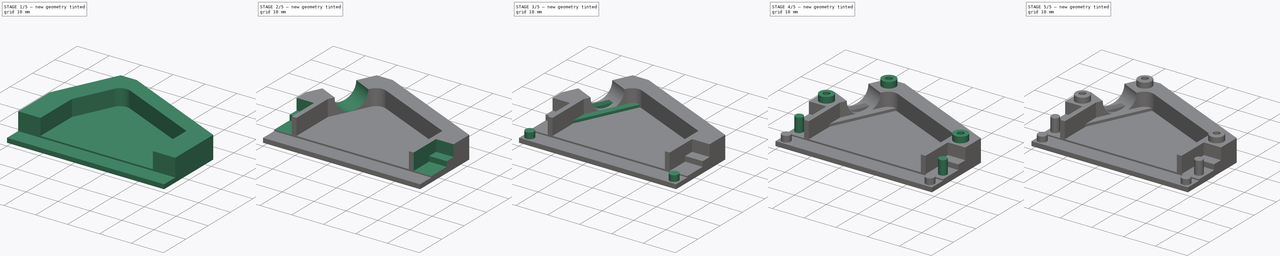
[diagram: build sequence overview — one tinted view per stage of 5, left to right]
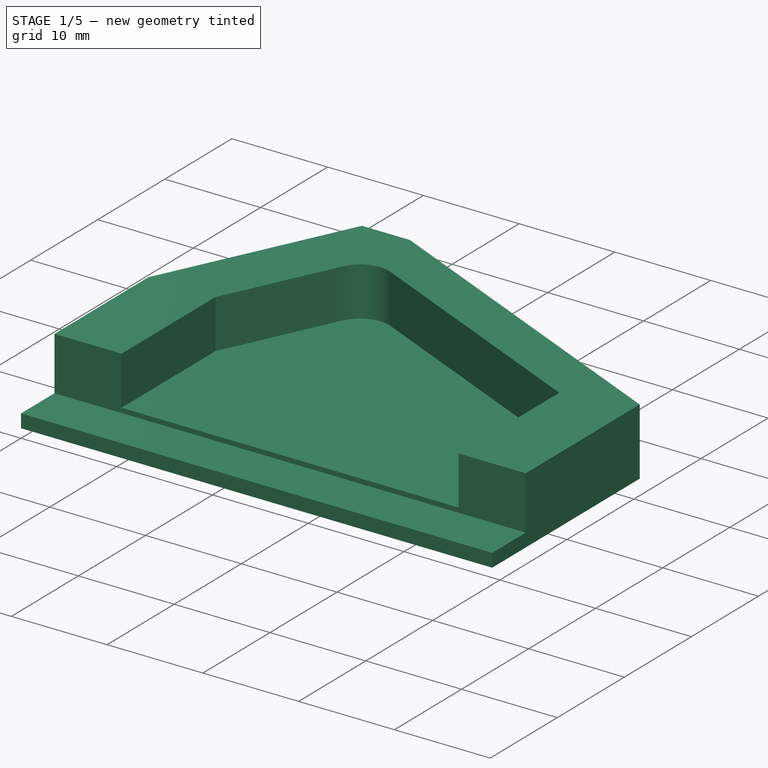
[diagram: stage 1 of 5 — iso view after this stage's code; geometry added in this stage tinted green]
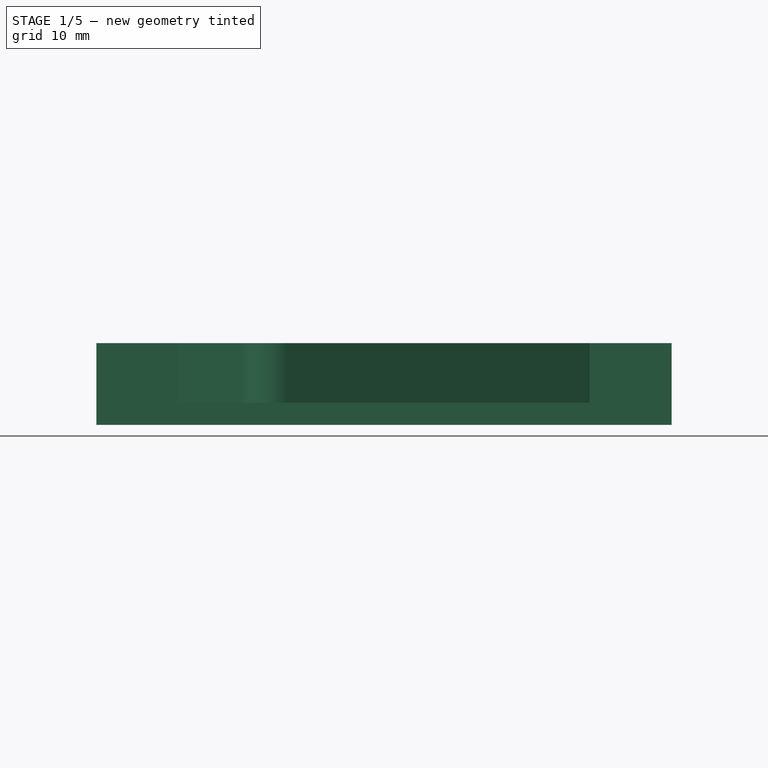
[diagram: stage 1 of 5 — front view after this stage's code; geometry added in this stage tinted green]
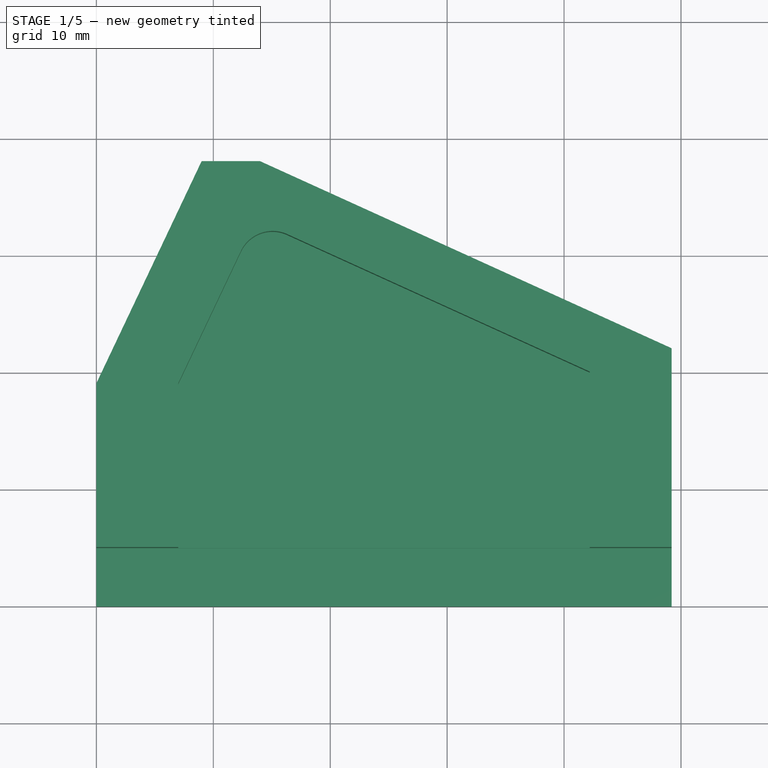
[diagram: stage 1 of 5 — top view after this stage's code; geometry added in this stage tinted green]
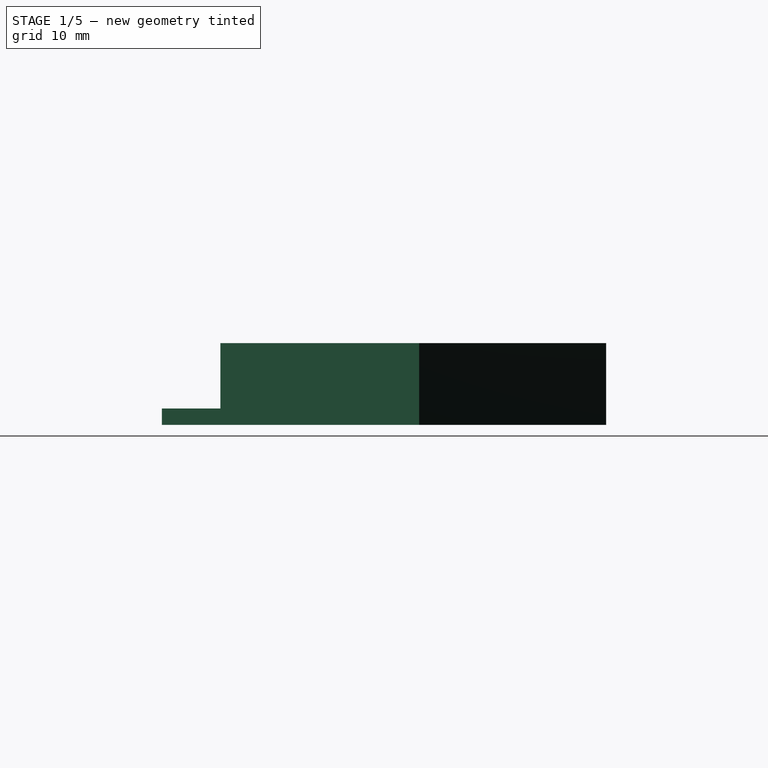
[diagram: stage 1 of 5 — right view after this stage's code; geometry added in this stage tinted green]
FCSTD DOCUMENT  (FreeCAD 0.20R29177 (Git))
Label: efs26_gehaeuse_01
License: All rights reserved
LicenseURL: http://en.wikipedia.org/wiki/All_rights_reserved
objects: Sketcher::SketchObject×15, PartDesign::Pocket×9, PartDesign::Pad×6, PartDesign::Fillet×1, PartDesign::Body×1
note: 48 computed .brp shape members not serialized (recipe doc carries the construction recipe); baked Part::Feature solids carry a one-line shape summary decoded from their .brp

FEATURE [Sketcher::SketchObject] Sketch  label="Aussenschale"
  FullyConstrained = true
  MapMode = 5
  Support = -> [XY_Plane]
  sketch-geometry (6):
    g0: LineSegment StartX=0 StartY=0 StartZ=0 EndX=49.2 EndY=0 EndZ=0
    g1: LineSegment StartX=49.2 StartY=0 StartZ=0 EndX=49.2 EndY=22 EndZ=0
    g2: LineSegment StartX=0 StartY=0 StartZ=0 EndX=0 EndY=19 EndZ=0
    g3: LineSegment StartX=0 StartY=19 StartZ=0 EndX=9 EndY=38 EndZ=0
    g4: LineSegment StartX=9 StartY=38 StartZ=0 EndX=14 EndY=38 EndZ=0
    g5: LineSegment StartX=14 StartY=38 StartZ=0 EndX=49.2 EndY=22 EndZ=0
  constraints (17):
    c: Coincident(g0,g-1)
    c: PointOnObject(g0,g-1)
    c: DistanceX(g0,g0) = 49.2
    c: Coincident(g1,g0)
    c: Vertical(g1)
    c: DistanceY(g1,g1) = 22
    c: Coincident(g2,g0)
    c: DistanceY(g2,g2) = 19
    c: Vertical(g2)
    c: Coincident(g3,g2)
    c: Coincident(g4,g3)
    c: Horizontal(g4)
    c: Coincident(g5,g4)
    c: Coincident(g5,g1)
    c: DistanceY(g0,g3) = 38
    c: DistanceX(g2,g3) = 9
    c: DistanceX(g3,g4) = 5
FEATURE [PartDesign::Pad] Pad
  Direction = (0,0,1)
  Length = 7
  Length2 = 10
  Profile = -> Sketch
  ReferenceAxis = -> Sketch [N_Axis]
  Type = 0
FEATURE [Sketcher::SketchObject] Sketch001
  AttachmentOffset = pos=(0,0,1.4) rot=(0,0,1;0rad)
  FullyConstrained = true
  MapMode = 5
  Placement = pos=(0,0,1.4) rot=(0,0,1;0rad)
  Support = -> [XY_Plane]
  sketch-geometry (4):
    g0: LineSegment StartX=0 StartY=0 StartZ=0 EndX=49.2 EndY=0 EndZ=0
    g1: LineSegment StartX=49.2 StartY=0 StartZ=0 EndX=49.2 EndY=5 EndZ=0
    g2: LineSegment StartX=49.2 StartY=5 StartZ=0 EndX=0 EndY=5 EndZ=0
    g3: LineSegment StartX=0 StartY=5 StartZ=0 EndX=0 EndY=0 EndZ=0
  constraints (11):
    c: Coincident(g0,g1)
    c: Coincident(g1,g2)
    c: Coincident(g2,g3)
    c: Coincident(g3,g0)
    c: Horizontal(g0)
    c: Horizontal(g2)
    c: Vertical(g1)
    c: Vertical(g3)
    c: Coincident(g0,g-1)
    c: DistanceY(g1,g1) = 5
    c: DistanceX(g2,g2) = 49.2
FEATURE [PartDesign::Pocket] Pocket
  BaseFeature = -> Pad
  Direction = (0,0,-1)
  Length = 5.6
  Length2 = 5
  Profile = -> Sketch001
  ReferenceAxis = -> Sketch001 [N_Axis]
  Reversed = true
  Type = 0
FEATURE [Sketcher::SketchObject] Sketch002
  AttachmentOffset = pos=(0,0,1.9) rot=(0,0,1;0rad)
  FullyConstrained = true
  MapMode = 5
  Placement = pos=(0,0,1.9) rot=(0,0,1;0rad)
  Support = -> [XY_Plane]
  sketch-geometry (12):
    g0: LineSegment StartX=7 StartY=5 StartZ=0 EndX=42.2 EndY=5 EndZ=0
    g1: LineSegment StartX=42.2 StartY=5 StartZ=0 EndX=42.2 EndY=20 EndZ=0
    g2: LineSegment StartX=42.2 StartY=20 StartZ=0 EndX=16.3574 EndY=31.7466 EndZ=0
    g3: LineSegment StartX=7 StartY=5 StartZ=0 EndX=7 EndY=19 EndZ=0
    g4: LineSegment StartX=7 StartY=19 StartZ=0 EndX=12.3619 EndY=30.3197 EndZ=0
    g5: LineSegment StartX=9 StartY=38 StartZ=0 EndX=0 EndY=19 EndZ=0
    g6: LineSegment StartX=14 StartY=38 StartZ=0 EndX=49.2 EndY=22 EndZ=0
    g7: ArcOfCircle CenterX=15.0732 CenterY=29.0354 CenterZ=0 NormalX=0 NormalY=0 NormalZ=1 AngleXU=0 Radius=3 StartAngle=1.12842 EndAngle=2.69922
    g8: LineSegment StartX=12.3619 StartY=30.3197 StartZ=0 EndX=15.0732 EndY=29.0354 EndZ=0
    g9: LineSegment StartX=16.3574 StartY=31.7466 StartZ=0 EndX=15.0732 EndY=29.0354 EndZ=0
    g10: LineSegment StartX=49.2 StartY=22 StartZ=0 EndX=49.2 EndY=0 EndZ=0
    g11: LineSegment StartX=9 StartY=38 StartZ=0 EndX=14 EndY=38 EndZ=0
  constraints (36):
    c: Horizontal(g0)
    c: Coincident(g1,g0)
    c: Vertical(g1)
    c: Coincident(g2,g1)
    c: Coincident(g3,g0)
    c: Vertical(g3)
    c: Coincident(g4,g3)
    c: DistanceX(g-1,g0) = 7
    c: DistanceY(g-1,g0) = 5
    c: DistanceY(g-1,g1) = 20
    c: DistanceY(g-1,g3) = 19
    c: PointOnObject(g5,g-2)
    c: DistanceY(g-1,g5) = 19
    c: DistanceX(g-1,g5) = 9
    c: DistanceY(g-1,g5) = 38
    c: Parallel(g5,g4)
    c: DistanceX(g5,g6) = 5
    c: DistanceY(g-1,g6) = 22
    c: DistanceX(g-1,g6) = 49.2
    c: Parallel(g2,g6)
    c: Coincident(g7,g4)
    c: Coincident(g7,g2)
    c: Coincident(g8,g4)
    c: Coincident(g8,g7)
    c: Coincident(g9,g2)
    c: Coincident(g9,g7)
    c: Perpendicular(g8,g9)
    c: Perpendicular(g8,g4)
    c: Radius(g7) = 3
    c: Coincident(g10,g6)
    c: PointOnObject(g10,g-1)
    c: Vertical(g10)
    c: Coincident(g11,g5)
    c: Coincident(g11,g6)
    c: Horizontal(g11)
    c: DistanceX(g0,g10) = 7
FEATURE [PartDesign::Pocket] Pocket001
  BaseFeature = -> Pocket
  Direction = (0,0,-1)
  Length = 6
  Length2 = 5
  Profile = -> Sketch002
  ReferenceAxis = -> Sketch002 [N_Axis]
  Reversed = true
  Type = 0
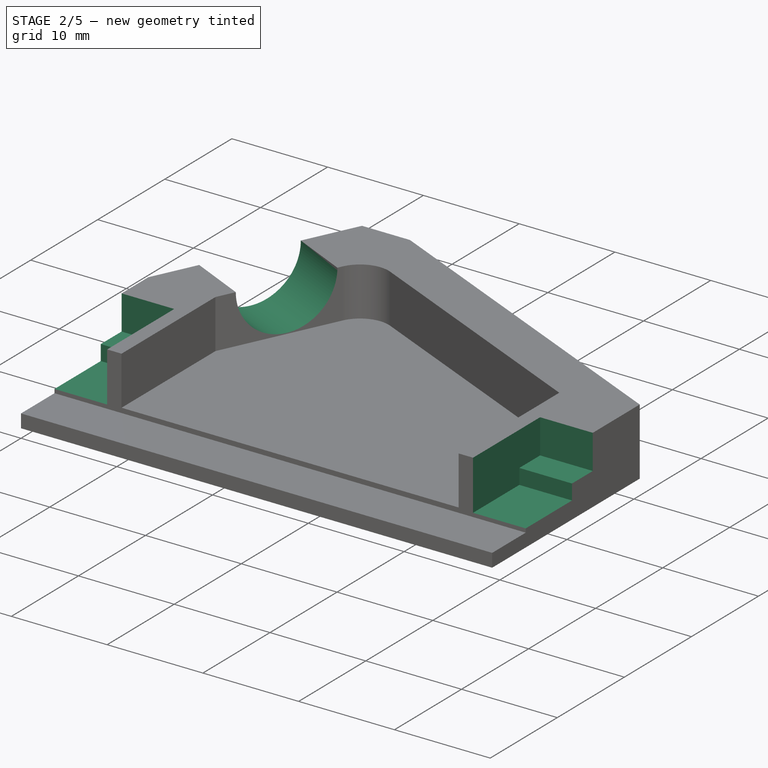
[diagram: stage 2 of 5 — iso view after this stage's code; geometry added in this stage tinted green]
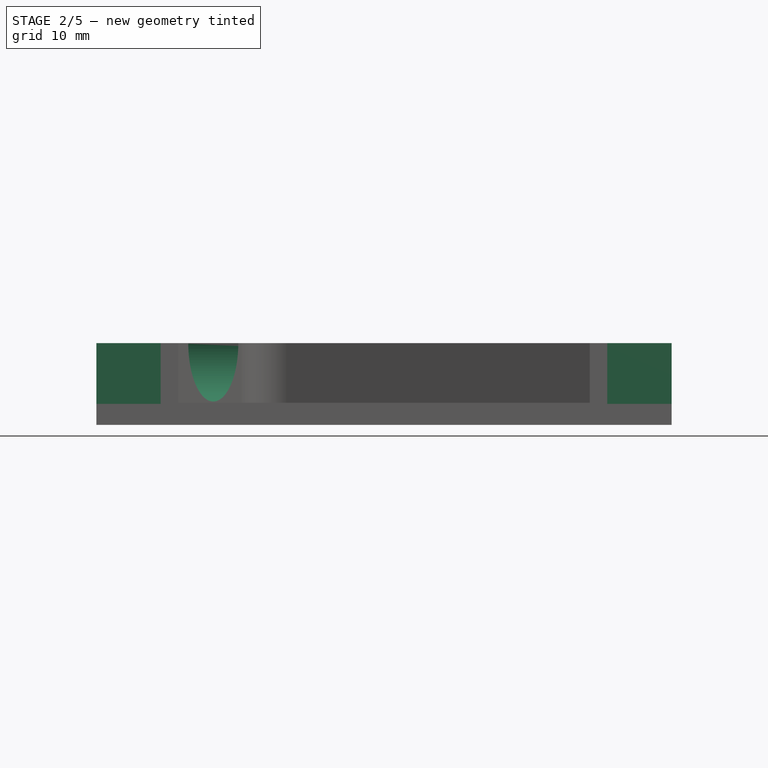
[diagram: stage 2 of 5 — front view after this stage's code; geometry added in this stage tinted green]
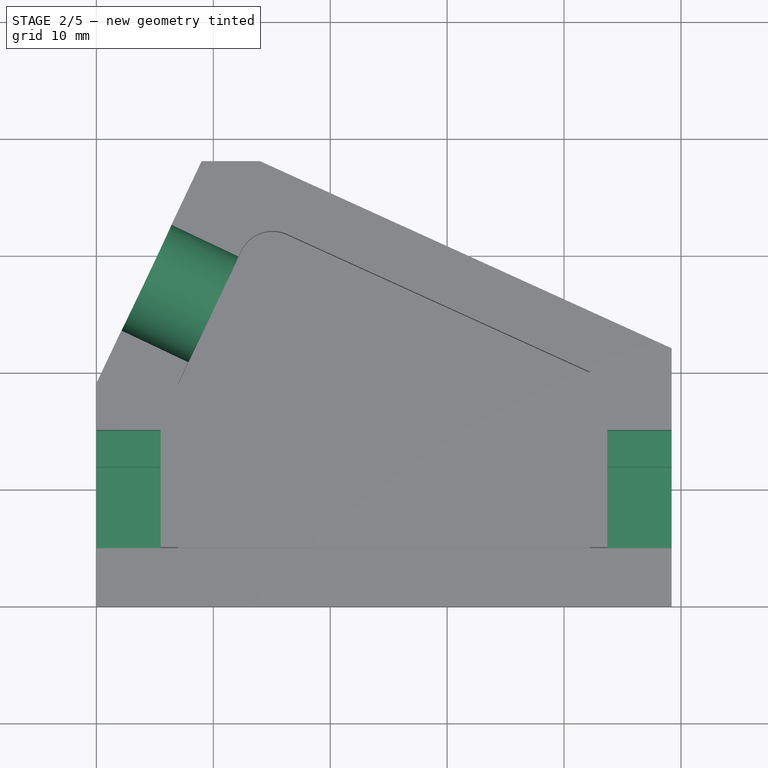
[diagram: stage 2 of 5 — top view after this stage's code; geometry added in this stage tinted green]
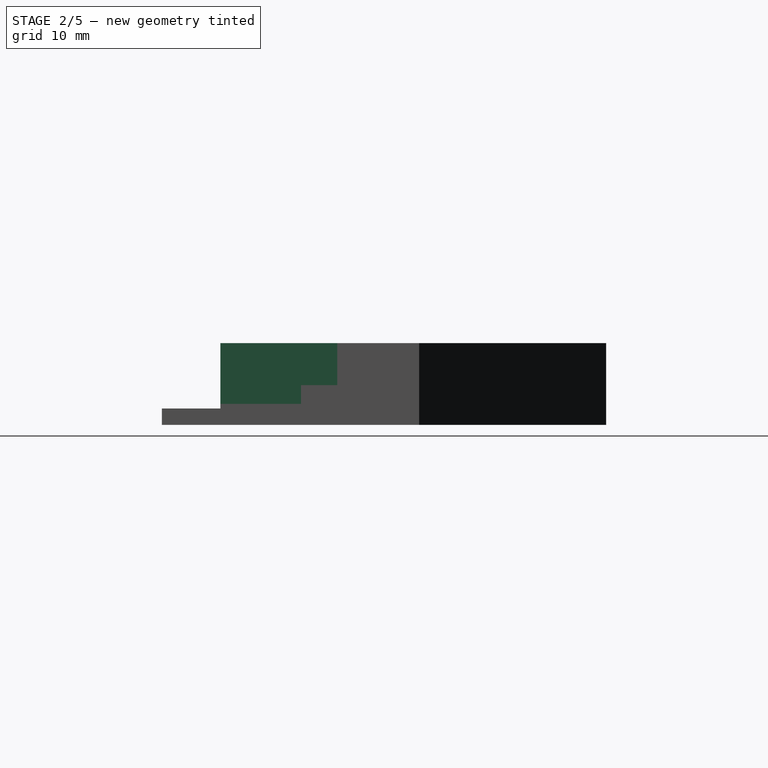
[diagram: stage 2 of 5 — right view after this stage's code; geometry added in this stage tinted green]
FEATURE [Sketcher::SketchObject] Sketch003
  AttachmentOffset = pos=(0,0,1.8) rot=(0,0,1;0rad)
  FullyConstrained = true
  MapMode = 5
  Placement = pos=(0,0,1.8) rot=(0,0,1;0rad)
  Support = -> [XY_Plane]
  sketch-geometry (8):
    g0: LineSegment StartX=0 StartY=11.9 StartZ=0 EndX=5.5 EndY=11.9 EndZ=0
    g1: LineSegment StartX=5.5 StartY=11.9 StartZ=0 EndX=5.5 EndY=5 EndZ=0
    g2: LineSegment StartX=5.5 StartY=5 StartZ=0 EndX=0 EndY=5 EndZ=0
    g3: LineSegment StartX=0 StartY=5 StartZ=0 EndX=0 EndY=11.9 EndZ=0
    g4: LineSegment StartX=49.2 StartY=5 StartZ=0 EndX=43.7 EndY=5 EndZ=0
    g5: LineSegment StartX=43.7 StartY=5 StartZ=0 EndX=43.7 EndY=11.9 EndZ=0
    g6: LineSegment StartX=43.7 StartY=11.9 StartZ=0 EndX=49.2 EndY=11.9 EndZ=0
    g7: LineSegment StartX=49.2 StartY=11.9 StartZ=0 EndX=49.2 EndY=5 EndZ=0
  constraints (24):
    c: Coincident(g0,g1)
    c: Coincident(g1,g2)
    c: Coincident(g2,g3)
    c: Coincident(g3,g0)
    c: Horizontal(g0)
    c: Horizontal(g2)
    c: Vertical(g1)
    c: Vertical(g3)
    c: PointOnObject(g0,g-2)
    c: DistanceY(g-1,g2) = 5
    c: DistanceX(g-1,g1) = 5.5
    c: DistanceY(g-1,g0) = 11.9
    c: Coincident(g4,g5)
    c: Coincident(g5,g6)
    c: Coincident(g6,g7)
    c: Coincident(g7,g4)
    c: Horizontal(g4)
    c: Horizontal(g6)
    c: Vertical(g5)
    c: Vertical(g7)
    c: Equal(g4,g2)
    c: Equal(g5,g1)
    c: DistanceY(g-1,g4) = 5
    c: DistanceX(g2,g4) = 49.2
FEATURE [PartDesign::Pocket] Pocket002
  BaseFeature = -> Pocket001
  Direction = (0,0,-1)
  Length = 6
  Length2 = 5
  Profile = -> Sketch003
  ReferenceAxis = -> Sketch003 [N_Axis]
  Reversed = true
  Type = 0
FEATURE [Sketcher::SketchObject] Sketch004
  AttachmentOffset = pos=(0,0,3.4) rot=(0,0,1;0rad)
  FullyConstrained = true
  MapMode = 5
  Placement = pos=(0,0,3.4) rot=(0,0,1;0rad)
  Support = -> [XY_Plane]
  sketch-geometry (8):
    g0: LineSegment StartX=0 StartY=15 StartZ=0 EndX=5.5 EndY=15 EndZ=0
    g1: LineSegment StartX=5.5 StartY=15 StartZ=0 EndX=5.5 EndY=5 EndZ=0
    g2: LineSegment StartX=5.5 StartY=5 StartZ=0 EndX=0 EndY=5 EndZ=0
    g3: LineSegment StartX=0 StartY=5 StartZ=0 EndX=0 EndY=15 EndZ=0
    g4: LineSegment StartX=49.2 StartY=5 StartZ=0 EndX=43.7 EndY=5 EndZ=0
    g5: LineSegment StartX=43.7 StartY=5 StartZ=0 EndX=43.7 EndY=15 EndZ=0
    g6: LineSegment StartX=43.7 StartY=15 StartZ=0 EndX=49.2 EndY=15 EndZ=0
    g7: LineSegment StartX=49.2 StartY=15 StartZ=0 EndX=49.2 EndY=5 EndZ=0
  constraints (24):
    c: Coincident(g0,g1)
    c: Coincident(g1,g2)
    c: Coincident(g2,g3)
    c: Coincident(g3,g0)
    c: Horizontal(g0)
    c: Horizontal(g2)
    c: Vertical(g1)
    c: Vertical(g3)
    c: PointOnObject(g0,g-2)
    c: DistanceY(g-1,g2) = 5
    c: DistanceX(g-1,g1) = 5.5
    c: DistanceY(g-1,g0) = 15
    c: Coincident(g4,g5)
    c: Coincident(g5,g6)
    c: Coincident(g6,g7)
    c: Coincident(g7,g4)
    c: Horizontal(g4)
    c: Horizontal(g6)
    c: Vertical(g5)
    c: Vertical(g7)
    c: Equal(g4,g2)
    c: Equal(g5,g1)
    c: DistanceY(g-1,g4) = 5
    c: DistanceX(g2,g4) = 49.2
FEATURE [PartDesign::Pocket] Pocket003
  BaseFeature = -> Pocket002
  Direction = (0,0,-1)
  Length = 5
  Length2 = 5
  Profile = -> Sketch004
  ReferenceAxis = -> Sketch004 [N_Axis]
  Reversed = true
  Type = 0
FEATURE [Sketcher::SketchObject] Sketch005  label="Kabeleinfuehrung"
  ExternalGeometry = -> [Pocket003]
  FullyConstrained = true
  MapMode = 5
  Placement = pos=(-7.35068,3.4819,0) rot=(-0.40845,0.645433,0.645433;3.91713rad)
  Support = -> [Pocket003]
  sketch-geometry (1):
    g0: Circle CenterX=-27.171 CenterY=7 CenterZ=0 NormalX=0 NormalY=0 NormalZ=1 AngleXU=0 Radius=5
  constraints (3):
    c: Radius(g0) = 5
    c: Distance(g-3,g0) = 10
    c: PointOnObject(g0,g-3)
FEATURE [PartDesign::Pocket] Pocket004
  BaseFeature = -> Pocket003
  Direction = (0.903738,-0.428086,-1e-16)
  Length = 7
  Length2 = 5
  Profile = -> Sketch005
  ReferenceAxis = -> Sketch005 [N_Axis]
  Type = 0
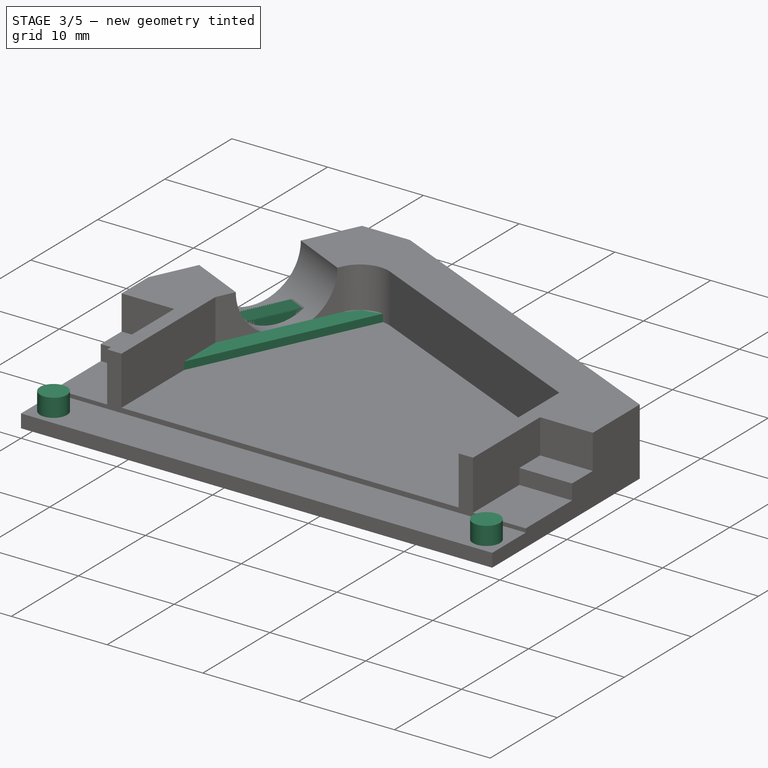
[diagram: stage 3 of 5 — iso view after this stage's code; geometry added in this stage tinted green]
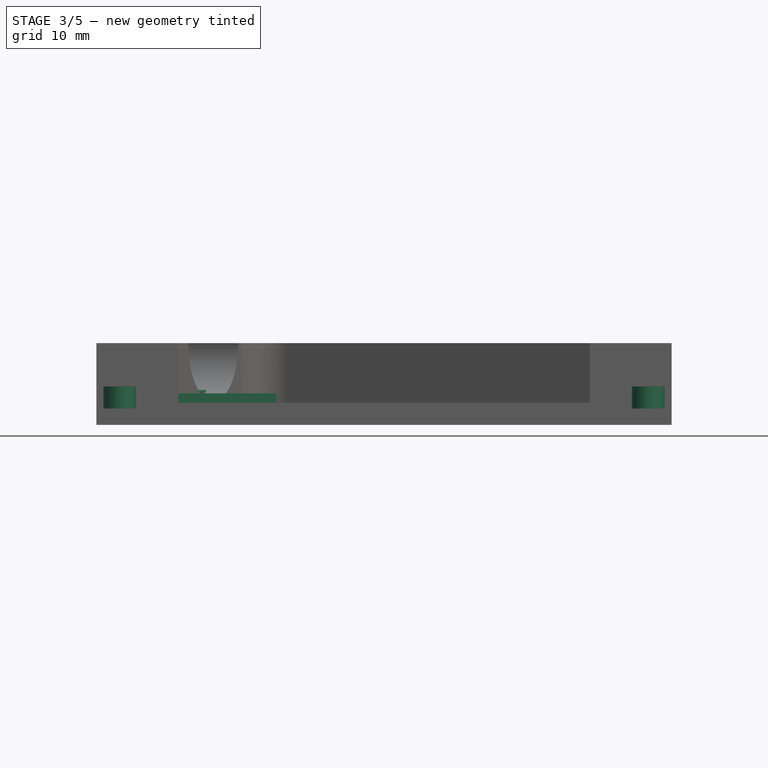
[diagram: stage 3 of 5 — front view after this stage's code; geometry added in this stage tinted green]
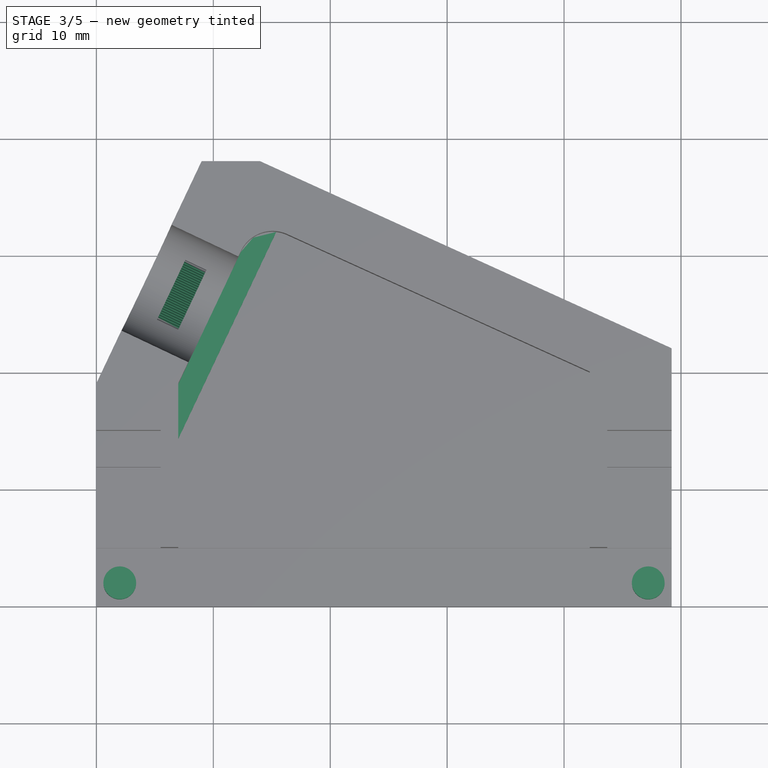
[diagram: stage 3 of 5 — top view after this stage's code; geometry added in this stage tinted green]
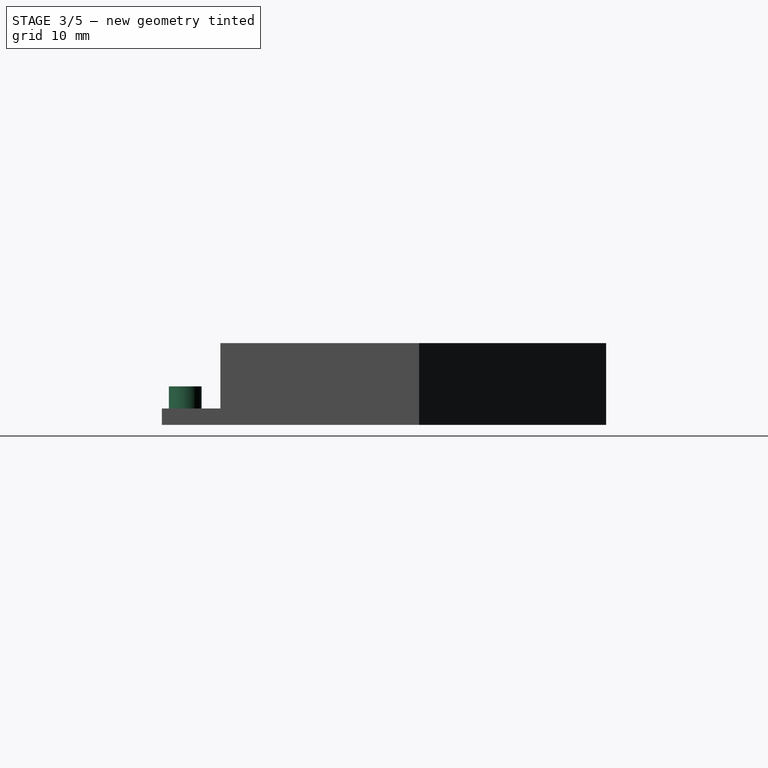
[diagram: stage 3 of 5 — right view after this stage's code; geometry added in this stage tinted green]
FEATURE [Sketcher::SketchObject] Sketch006  label="Kabeleinlassstufe"
  ExternalGeometry = -> [Pocket004]
  FullyConstrained = true
  MapMode = 5
  Support = -> [XY_Plane]
  sketch-geometry (4):
    g0: LineSegment StartX=13.5728 StartY=32.8758 StartZ=0 EndX=15.3802 EndY=32.0197 EndZ=0
    g1: LineSegment StartX=15.3802 StartY=32.0197 StartZ=0 EndX=7 EndY=14.328 EndZ=0
    g2: LineSegment StartX=7 StartY=14.328 StartZ=0 EndX=5.19252 EndY=15.1842 EndZ=0
    g3: LineSegment StartX=5.19252 StartY=15.1842 StartZ=0 EndX=13.5728 EndY=32.8758 EndZ=0
  constraints (12):
    c: Coincident(g0,g1)
    c: Coincident(g1,g2)
    c: Coincident(g2,g3)
    c: Coincident(g3,g0)
    c: Parallel(g3,g-3)
    c: PointOnObject(g-3,g3)
    c: Parallel(g3,g1)
    c: Perpendicular(g2,g3)
    c: Perpendicular(g0,g3)
    c: Distance(g2) = 2
    c: PointOnObject(g1,g-4)
    c: PointOnObject(g0,g-5)
FEATURE [PartDesign::Pad] Pad001
  BaseFeature = -> Pocket004
  Direction = (0,0,1)
  Length = 2.7
  Length2 = 10
  Profile = -> Sketch006
  ReferenceAxis = -> Sketch006 [N_Axis]
  Type = 0
FEATURE [Sketcher::SketchObject] Sketch007  label="Kabelentlastung"
  ExternalGeometry = -> [Pad001]
  FullyConstrained = true
  MapMode = 5
  Support = -> [XY_Plane]
  sketch-geometry (4):
    g0: LineSegment StartX=10.331 StartY=30.7041 StartZ=0 EndX=8.52354 EndY=31.5603 EndZ=0
    g1: LineSegment StartX=8.52354 StartY=31.5603 StartZ=0 EndX=4.24267 EndY=22.5229 EndZ=0
    g2: LineSegment StartX=4.24267 StartY=22.5229 StartZ=0 EndX=6.05015 EndY=21.6667 EndZ=0
    g3: LineSegment StartX=6.05015 StartY=21.6667 StartZ=0 EndX=10.331 EndY=30.7041 EndZ=0
  constraints (12):
    c: Coincident(g0,g1)
    c: Coincident(g1,g2)
    c: Coincident(g2,g3)
    c: Coincident(g3,g0)
    c: Distance(g0) = 2
    c: PointOnObject(g0,g-3)
    c: PointOnObject(g0,g-3)
    c: PointOnObject(g2,g-4)
    c: PointOnObject(g1,g-4)
    c: Perpendicular(g1,g0)
    c: Distance(g0,g-3) = 2
    c: Perpendicular(g3,g0)
FEATURE [PartDesign::Pad] Pad002
  BaseFeature = -> Pad001
  Direction = (0,0,1)
  Length = 3
  Length2 = 10
  Profile = -> Sketch007
  ReferenceAxis = -> Sketch007 [N_Axis]
  Type = 0
FEATURE [Sketcher::SketchObject] Sketch008  label="RiffelungKabeleinlass"
  ExternalGeometry = -> [Pad002]
  FullyConstrained = true
  MapMode = 5
  Placement = pos=(-5.24844,2.4861,0) rot=(-0.40845,0.645433,0.645433;3.91713rad)
  Support = -> [Pad002]
  sketch-geometry (63):
    g0: LineSegment StartX=-30.0299 StartY=2.89797 StartZ=0 EndX=-29.971 EndY=3 EndZ=0
    g1: LineSegment StartX=-30.171 StartY=3 StartZ=0 EndX=-30.0299 EndY=2.89797 EndZ=0
    g2: LineSegment StartX=-30.171 StartY=3 StartZ=0 EndX=-30.171 EndY=3.2 EndZ=0
    g3: LineSegment StartX=-30.171 StartY=3.2 StartZ=0 EndX=-24.171 EndY=3.2 EndZ=0
    g4: LineSegment StartX=-24.171 StartY=3.2 StartZ=0 EndX=-24.171 EndY=3 EndZ=0
    g5: LineSegment StartX=-29.971 StartY=3 StartZ=0 EndX=-29.871 EndY=2.82679 EndZ=0
    g6: LineSegment StartX=-29.871 StartY=2.82679 StartZ=0 EndX=-29.771 EndY=3 EndZ=0
    g7: LineSegment StartX=-29.771 StartY=3 StartZ=0 EndX=-29.671 EndY=2.82679 EndZ=0
    g8: LineSegment StartX=-29.671 StartY=2.82679 StartZ=0 EndX=-29.571 EndY=3 EndZ=0
    g9: LineSegment StartX=-29.571 StartY=3 StartZ=0 EndX=-29.471 EndY=2.82679 EndZ=0
    g10: LineSegment StartX=-29.471 StartY=2.82679 StartZ=0 EndX=-29.371 EndY=3 EndZ=0
    g11: LineSegment StartX=-29.371 StartY=3 StartZ=0 EndX=-29.271 EndY=2.82679 EndZ=0
    g12: LineSegment StartX=-29.271 StartY=2.82679 StartZ=0 EndX=-29.171 EndY=3 EndZ=0
    g13: LineSegment StartX=-29.171 StartY=3 StartZ=0 EndX=-29.071 EndY=2.82679 EndZ=0
    g14: LineSegment StartX=-29.071 StartY=2.82679 StartZ=0 EndX=-28.971 EndY=3 EndZ=0
    g15: LineSegment StartX=-28.971 StartY=3 StartZ=0 EndX=-28.871 EndY=2.82679 EndZ=0
    g16: LineSegment StartX=-28.871 StartY=2.82679 StartZ=0 EndX=-28.771 EndY=3 EndZ=0
    g17: LineSegment StartX=-28.771 StartY=3 StartZ=0 EndX=-28.671 EndY=2.82679 EndZ=0
    g18: LineSegment StartX=-28.671 StartY=2.82679 StartZ=0 EndX=-28.571 EndY=3 EndZ=0
    g19: LineSegment StartX=-28.571 StartY=3 StartZ=0 EndX=-28.471 EndY=2.82679 EndZ=0
    g20: LineSegment StartX=-28.471 StartY=2.82679 StartZ=0 EndX=-28.371 EndY=3 EndZ=0
    g21: LineSegment StartX=-28.371 StartY=3 StartZ=0 EndX=-28.271 EndY=2.82679 EndZ=0
    g22: LineSegment StartX=-28.271 StartY=2.82679 StartZ=0 EndX=-28.171 EndY=3 EndZ=0
    g23: LineSegment StartX=-28.171 StartY=3 StartZ=0 EndX=-28.071 EndY=2.82679 EndZ=0
    g24: LineSegment StartX=-28.071 StartY=2.82679 StartZ=0 EndX=-27.971 EndY=3 EndZ=0
    g25: LineSegment StartX=-27.971 StartY=3 StartZ=0 EndX=-27.871 EndY=2.82679 EndZ=0
    g26: LineSegment StartX=-27.871 StartY=2.82679 StartZ=0 EndX=-27.771 EndY=3 EndZ=0
    g27: LineSegment StartX=-27.771 StartY=3 StartZ=0 EndX=-27.671 EndY=2.82679 EndZ=0
    g28: LineSegment StartX=-27.671 StartY=2.82679 StartZ=0 EndX=-27.571 EndY=3 EndZ=0
    g29: LineSegment StartX=-27.571 StartY=3 StartZ=0 EndX=-27.471 EndY=2.82679 EndZ=0
    g30: LineSegment StartX=-27.471 StartY=2.82679 StartZ=0 EndX=-27.371 EndY=3 EndZ=0
    g31: LineSegment StartX=-27.371 StartY=3 StartZ=0 EndX=-27.271 EndY=2.82679 EndZ=0
    g32: LineSegment StartX=-27.271 StartY=2.82679 StartZ=0 EndX=-27.171 EndY=3 EndZ=0
    g33: LineSegment StartX=-27.171 StartY=3 StartZ=0 EndX=-27.071 EndY=2.82679 EndZ=0
    g34: LineSegment StartX=-27.071 StartY=2.82679 StartZ=0 EndX=-26.971 EndY=3 EndZ=0
    g35: LineSegment StartX=-26.971 StartY=3 StartZ=0 EndX=-26.871 EndY=2.82679 EndZ=0
    g36: LineSegment StartX=-26.871 StartY=2.82679 StartZ=0 EndX=-26.771 EndY=3 EndZ=0
    g37: LineSegment StartX=-26.771 StartY=3 StartZ=0 EndX=-26.671 EndY=2.82679 EndZ=0
    g38: LineSegment StartX=-26.671 StartY=2.82679 StartZ=0 EndX=-26.571 EndY=3 EndZ=0
    g39: LineSegment StartX=-26.571 StartY=3 StartZ=0 EndX=-26.471 EndY=2.82679 EndZ=0
    g40: LineSegment StartX=-26.471 StartY=2.82679 StartZ=0 EndX=-26.371 EndY=3 EndZ=0
    g41: LineSegment StartX=-26.371 StartY=3 StartZ=0 EndX=-26.271 EndY=2.82679 EndZ=0
    g42: LineSegment StartX=-26.271 StartY=2.82679 StartZ=0 EndX=-26.171 EndY=3 EndZ=0
    g43: LineSegment StartX=-26.171 StartY=3 StartZ=0 EndX=-26.071 EndY=2.82679 EndZ=0
    g44: LineSegment StartX=-26.071 StartY=2.82679 StartZ=0 EndX=-25.971 EndY=3 EndZ=0
    g45: LineSegment StartX=-25.971 StartY=3 StartZ=0 EndX=-25.871 EndY=2.82679 EndZ=0
    g46: LineSegment StartX=-25.871 StartY=2.82679 StartZ=0 EndX=-25.771 EndY=3 EndZ=0
    g47: LineSegment StartX=-25.771 StartY=3 StartZ=0 EndX=-25.671 EndY=2.82679 EndZ=0
    g48: LineSegment StartX=-25.671 StartY=2.82679 StartZ=0 EndX=-25.571 EndY=3 EndZ=0
    g49: LineSegment StartX=-25.571 StartY=3 StartZ=0 EndX=-25.471 EndY=2.82679 EndZ=0
    g50: LineSegment StartX=-25.471 StartY=2.82679 StartZ=0 EndX=-25.371 EndY=3 EndZ=0
    g51: LineSegment StartX=-25.371 StartY=3 StartZ=0 EndX=-25.271 EndY=2.82679 EndZ=0
    g52: LineSegment StartX=-25.271 StartY=2.82679 StartZ=0 EndX=-25.171 EndY=3 EndZ=0
    g53: LineSegment StartX=-25.171 StartY=3 StartZ=0 EndX=-25.071 EndY=2.82679 EndZ=0
    g54: LineSegment StartX=-25.071 StartY=2.82679 StartZ=0 EndX=-24.971 EndY=3 EndZ=0
    g55: LineSegment StartX=-24.971 StartY=3 StartZ=0 EndX=-24.871 EndY=2.82679 EndZ=0
    g56: LineSegment StartX=-24.871 StartY=2.82679 StartZ=0 EndX=-24.771 EndY=3 EndZ=0
    g57: LineSegment StartX=-24.771 StartY=3 StartZ=0 EndX=-24.671 EndY=2.82679 EndZ=0
    g58: LineSegment StartX=-24.671 StartY=2.82679 StartZ=0 EndX=-24.571 EndY=3 EndZ=0
    g59: LineSegment StartX=-24.571 StartY=3 StartZ=0 EndX=-24.471 EndY=2.82679 EndZ=0
    g60: LineSegment StartX=-24.471 StartY=2.82679 StartZ=0 EndX=-24.371 EndY=3 EndZ=0
    g61: LineSegment StartX=-24.371 StartY=3 StartZ=0 EndX=-24.3121 EndY=2.89797 EndZ=0
    g62: LineSegment StartX=-24.3121 StartY=2.89797 StartZ=0 EndX=-24.171 EndY=3 EndZ=0
  constraints (187):
    c: Coincident(g2,g3)
    c: Coincident(g1,g2)
    c: Coincident(g0,g1)
    c: Distance(g2) = 0.2
    c: Coincident(g3,g4)
    c: Parallel(g3,g-3)
    c: Perpendicular(g3,g2)
    c: Distance(g1,g0) = 0.2
    c: Angle(g0,g-3) = 2.0944
    c: Coincident(g5,g0)
    c: Coincident(g6,g5)
    c: PointOnObject(g6,g-3)
    c: Distance(g0,g6) = 0.2
    c: Angle(g5,g-3) = 1.0472
    c: PointOnObject(g0,g-3)
    c: Angle(g6) = 1.0472
    c: Coincident(g7,g6)
    c: Equal(g5,g7)
    c: Parallel(g7,g5)
    c: Coincident(g8,g7)
    c: PointOnObject(g8,g-3)
    c: Parallel(g6,g8)
    c: Coincident(g9,g8)
    c: Coincident(g10,g9)
    c: PointOnObject(g10,g-3)
    c: Coincident(g11,g10)
    c: Coincident(g12,g11)
    c: PointOnObject(g12,g-3)
    c: Coincident(g13,g12)
    c: Coincident(g14,g13)
    c: PointOnObject(g14,g-3)
    c: Equal(g7,g9)
    c: Parallel(g7,g9)
    c: Parallel(g8,g10)
    c: Parallel(g9,g11)
    c: Parallel(g10,g12)
    c: Parallel(g11,g13)
    c: Parallel(g12,g14)
    c: Equal(g9,g11)
    c: Equal(g11,g13)
    c: Coincident(g15,g14)
    c: Coincident(g16,g15)
    c: PointOnObject(g16,g-3)
    c: Coincident(g17,g16)
    c: Coincident(g18,g17)
    c: PointOnObject(g18,g-3)
    c: Coincident(g19,g18)
    c: Coincident(g20,g19)
    c: PointOnObject(g20,g-3)
    c: Coincident(g21,g20)
    c: PointOnObject(g22,g-3)
    c: Coincident(g24,g23)
    c: PointOnObject(g24,g-3)
    c: Coincident(g25,g24)
    c: Coincident(g26,g25)
    c: PointOnObject(g26,g-3)
    c: Coincident(g28,g27)
    c: PointOnObject(g28,g-3)
    c: Parallel(g13,g15)
    c: Parallel(g15,g17)
    c: Parallel(g17,g19)
    c: Parallel(g19,g21)
    c: Parallel(g21,g23)
    c: Parallel(g23,g25)
    c: Parallel(g25,g27)
    c: Parallel(g14,g16)
    c: Parallel(g16,g18)
    c: Parallel(g18,g20)
    c: Parallel(g20,g22)
    c: Parallel(g22,g24)
    c: Parallel(g24,g26)
    c: Parallel(g26,g28)
    c: Equal(g13,g15)
    c: Equal(g15,g17)
    c: Equal(g17,g19)
    c: Equal(g19,g21)
    c: Equal(g21,g23)
    c: Equal(g23,g25)
    c: Equal(g25,g27)
    c: Coincident(g21,g22)
    c: Coincident(g22,g23)
    c: Coincident(g26,g27)
    c: Coincident(g29,g28)
    c: Coincident(g30,g29)
    c: PointOnObject(g30,g-3)
    c: Coincident(g31,g30)
    c: Coincident(g32,g31)
    c: PointOnObject(g32,g-3)
    c: Coincident(g33,g32)
    c: Coincident(g34,g33)
    c: PointOnObject(g34,g-3)
    c: Coincident(g35,g34)
    c: Coincident(g36,g35)
    c: PointOnObject(g36,g-3)
    c: Coincident(g37,g36)
    c: Coincident(g38,g37)
    c: PointOnObject(g38,g-3)
    c: Coincident(g39,g38)
    c: Coincident(g40,g39)
    c: PointOnObject(g40,g-3)
    c: Coincident(g41,g40)
    c: Coincident(g42,g41)
    c: PointOnObject(g42,g-3)
    c: Coincident(g43,g42)
    c: Coincident(g44,g43)
    c: PointOnObject(g44,g-3)
    c: Coincident(g46,g45)
    c: PointOnObject(g46,g-3)
    c: Coincident(g47,g46)
    c: Coincident(g48,g47)
    c: PointOnObject(g48,g-3)
    c: Coincident(g50,g49)
    c: PointOnObject(g50,g-3)
    c: Coincident(g52,g51)
    c: PointOnObject(g52,g-3)
    c: Coincident(g53,g52)
    c: Equal(g27,g29)
    c: Equal(g29,g31)
    c: Equal(g31,g33)
    c: Equal(g33,g35)
    c: Equal(g35,g37)
    c: Equal(g37,g39)
    c: Equal(g39,g41)
    c: Equal(g41,g43)
    c: Equal(g43,g45)
    c: Equal(g45,g47)
    c: Equal(g47,g49)
    c: Equal(g49,g51)
    c: Equal(g51,g53)
    c: Parallel(g27,g29)
    c: Parallel(g29,g31)
    c: Parallel(g31,g33)
    c: Parallel(g33,g35)
    c: Parallel(g35,g37)
    c: Parallel(g37,g39)
    c: Parallel(g39,g41)
    c: Parallel(g41,g43)
    c: Parallel(g43,g45)
    c: Parallel(g45,g47)
    c: Parallel(g47,g49)
    c: Parallel(g49,g51)
    c: Parallel(g51,g53)
    c: Parallel(g28,g30)
    c: Parallel(g30,g32)
    c: Parallel(g32,g34)
    c: Parallel(g36,g38)
    c: Parallel(g38,g40)
    c: Parallel(g40,g42)
    c: Coincident(g44,g45)
    c: Parallel(g42,g44)
    c: Parallel(g44,g46)
    c: Coincident(g48,g49)
    c: Coincident(g50,g51)
    c: Parallel(g46,g48)
    c: Parallel(g48,g50)
    c: Parallel(g50,g52)
    c: Coincident(g54,g53)
    c: PointOnObject(g54,g-3)
    c: Coincident(g55,g54)
    c: Coincident(g56,g55)
    c: PointOnObject(g56,g-3)
    c: Coincident(g57,g56)
    c: Parallel(g52,g54)
    c: Parallel(g54,g56)
    c: Equal(g54,g56)
    c: Parallel(g53,g55)
    c: Parallel(g55,g57)
    c: PointOnObject(g0,g-4)
    c: Coincident(g58,g57)
    c: PointOnObject(g58,g-3)
    c: Parallel(g56,g58)
    c: Coincident(g59,g58)
    c: Parallel(g57,g59)
    c: Coincident(g1,g-4)
    c: Equal(g55,g57)
    c: Equal(g57,g59)
    c: Coincident(g60,g59)
    c: PointOnObject(g60,g-3)
    c: Distance(g58,g60) = 0.2
    c: Coincident(g61,g60)
    c: PointOnObject(g61,g-4)
    c: Parallel(g59,g61)
    c: Coincident(g62,g61)
    c: Coincident(g62,g-4)
    c: Coincident(g4,g62)
    c: Perpendicular(g4,g3)
    c: Parallel(g34,g36)
FEATURE [PartDesign::Pocket] Pocket005
  BaseFeature = -> Pad002
  Direction = (0.903738,-0.428086,1e-16)
  Length = 2
  Length2 = 5
  Profile = -> Sketch008
  ReferenceAxis = -> Sketch008 [N_Axis]
  Type = 0
FEATURE [Sketcher::SketchObject] Sketch009  label="PassungEFS26"
  ExternalGeometry = -> [Pocket005]
  FullyConstrained = true
  MapMode = 5
  Support = -> [XY_Plane]
  sketch-geometry (2):
    g0: Circle CenterX=2 CenterY=2 CenterZ=0 NormalX=0 NormalY=0 NormalZ=1 AngleXU=0 Radius=1.4
    g1: Circle CenterX=47.2 CenterY=2 CenterZ=0 NormalX=0 NormalY=0 NormalZ=1 AngleXU=0 Radius=1.4
  constraints (6):
    c: Radius(g0) = 1.4
    c: Equal(g1,g0)
    c: DistanceX(g-3,g0) = 2
    c: DistanceY(g-3,g0) = 2
    c: DistanceX(g1,g-3) = 2
    c: DistanceY(g-3,g1) = 2
FEATURE [PartDesign::Pad] Pad003
  BaseFeature = -> Pocket005
  Direction = (0,0,1)
  Length = 3.3
  Length2 = 10
  Profile = -> Sketch009
  ReferenceAxis = -> Sketch009 [N_Axis]
  Type = 0
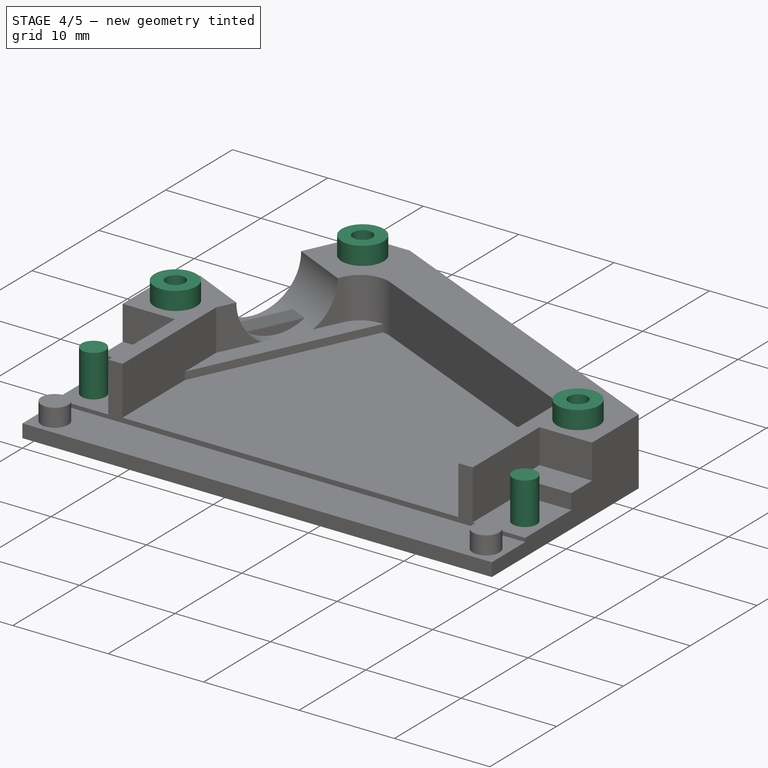
[diagram: stage 4 of 5 — iso view after this stage's code; geometry added in this stage tinted green]
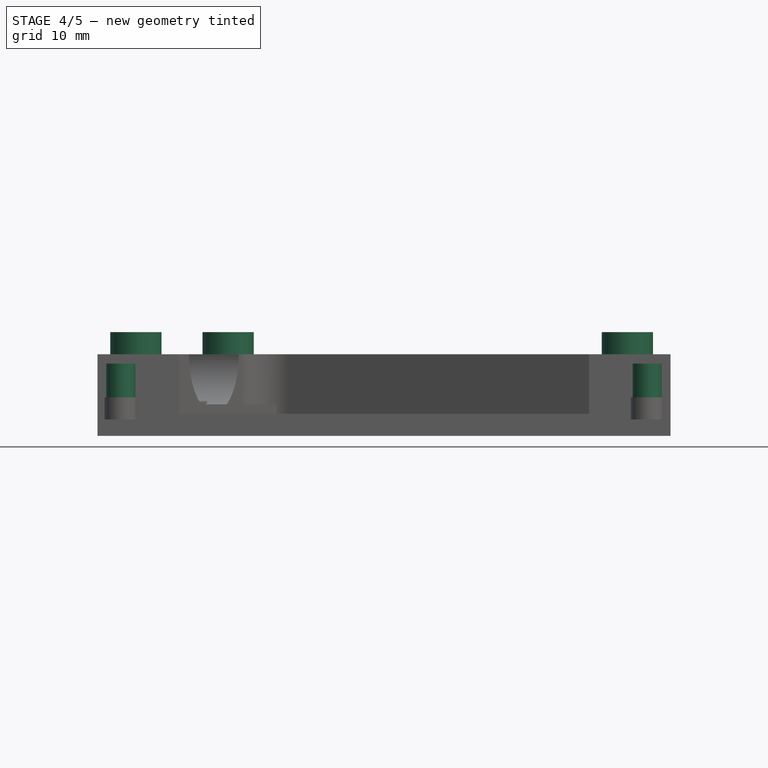
[diagram: stage 4 of 5 — front view after this stage's code; geometry added in this stage tinted green]
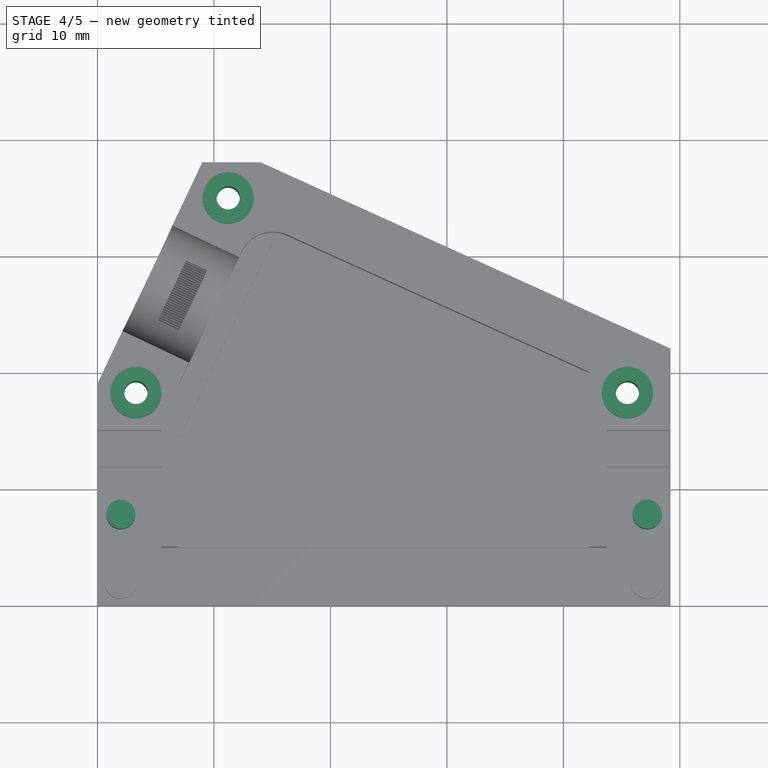
[diagram: stage 4 of 5 — top view after this stage's code; geometry added in this stage tinted green]
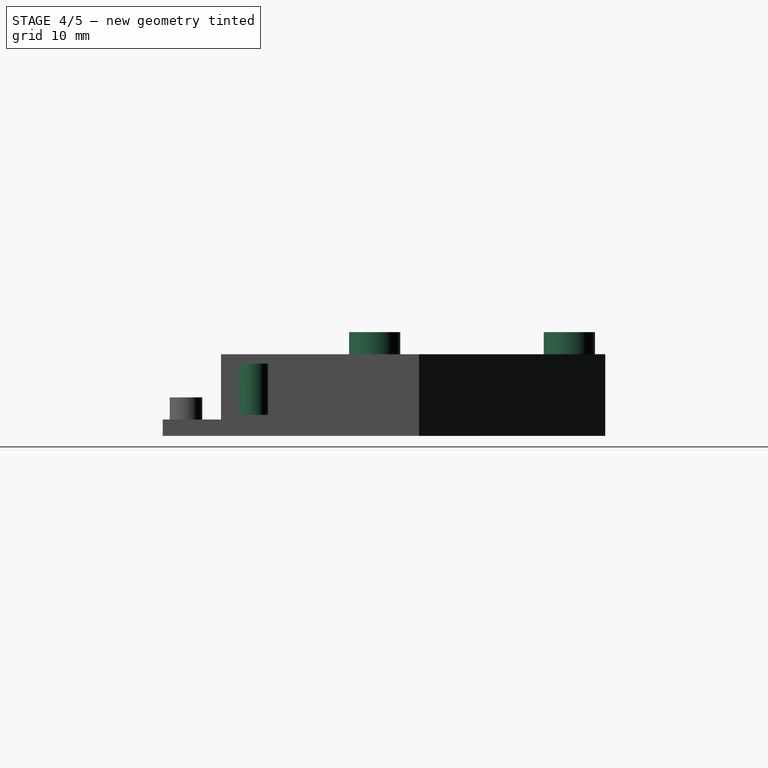
[diagram: stage 4 of 5 — right view after this stage's code; geometry added in this stage tinted green]
FEATURE [Sketcher::SketchObject] Sketch010  label="AchsenVerriegelung"
  ExternalGeometry = -> [Pad003]
  FullyConstrained = true
  MapMode = 5
  Support = -> [XY_Plane]
  sketch-geometry (2):
    g0: Circle CenterX=2 CenterY=7.8 CenterZ=0 NormalX=0 NormalY=0 NormalZ=1 AngleXU=0 Radius=1.25
    g1: Circle CenterX=47.2 CenterY=7.8 CenterZ=0 NormalX=0 NormalY=0 NormalZ=1 AngleXU=0 Radius=1.25
  constraints (6):
    c: DistanceX(g-3,g0) = 0
    c: Equal(g1,g0)
    c: DistanceX(g1,g-4) = 0
    c: DistanceY(g-1,g0) = 7.8
    c: DistanceY(g0,g1) = 0
    c: Radius(g0) = 1.25
FEATURE [PartDesign::Pad] Pad004
  BaseFeature = -> Pad003
  Direction = (0,0,1)
  Length = 6.2
  Length2 = 10
  Profile = -> Sketch010
  ReferenceAxis = -> Sketch010 [N_Axis]
  Type = 0
FEATURE [Sketcher::SketchObject] Sketch011  label="Schalenverbindung"
  ExternalGeometry = -> [Pad004]
  FullyConstrained = true
  MapMode = 5
  Support = -> [XY_Plane]
  sketch-geometry (4):
    g0: Circle CenterX=3.3 CenterY=18.2 CenterZ=0 NormalX=0 NormalY=0 NormalZ=1 AngleXU=0 Radius=2.2
    g1: Circle CenterX=45.5 CenterY=18.2 CenterZ=0 NormalX=0 NormalY=0 NormalZ=1 AngleXU=0 Radius=2.2
    g2: Circle CenterX=11.2196 CenterY=34.9192 CenterZ=0 NormalX=0 NormalY=0 NormalZ=1 AngleXU=0 Radius=2.2
    g3: LineSegment StartX=3.3 StartY=18.2 StartZ=0 EndX=11.2196 EndY=34.9192 EndZ=0
  constraints (11):
    c: Radius(g0) = 2.2
    c: DistanceX(g-1,g0) = 3.3
    c: DistanceY(g-1,g0) = 18.2
    c: Equal(g1,g0)
    c: DistanceX(g1,g-3) = 3.7
    c: DistanceY(g0,g1) = 0
    c: Equal(g2,g0)
    c: Coincident(g3,g0)
    c: Coincident(g3,g2)
    c: Parallel(g-4,g3)
    c: Distance(g3) = 18.5
FEATURE [PartDesign::Pad] Pad005
  BaseFeature = -> Pad004
  Direction = (0,0,1)
  Length = 8.9
  Length2 = 10
  Profile = -> Sketch011
  ReferenceAxis = -> Sketch011 [N_Axis]
  Type = 0
FEATURE [Sketcher::SketchObject] Sketch012  label="Bohrungen"
  ExternalGeometry = -> [Pad005]
  FullyConstrained = true
  MapMode = 5
  Support = -> [XY_Plane]
  sketch-geometry (3):
    g0: Circle CenterX=11.2196 CenterY=34.9192 CenterZ=0 NormalX=0 NormalY=0 NormalZ=1 AngleXU=0 Radius=1
    g1: Circle CenterX=3.3 CenterY=18.2 CenterZ=0 NormalX=0 NormalY=0 NormalZ=1 AngleXU=0 Radius=1
    g2: Circle CenterX=45.5 CenterY=18.2 CenterZ=0 NormalX=0 NormalY=0 NormalZ=1 AngleXU=0 Radius=1
  constraints (6):
    c: Coincident(g0,g-4)
    c: Coincident(g2,g-5)
    c: Coincident(g1,g-3)
    c: Equal(g1,g2)
    c: Equal(g0,g1)
    c: Diameter(g0) = 2
FEATURE [PartDesign::Pocket] Pocket006
  BaseFeature = -> Pad005
  Direction = (0,0,-1)
  Length = 5
  Length2 = 5
  Profile = -> Sketch012
  ReferenceAxis = -> Sketch012 [N_Axis]
  Reversed = true
  Type = 1
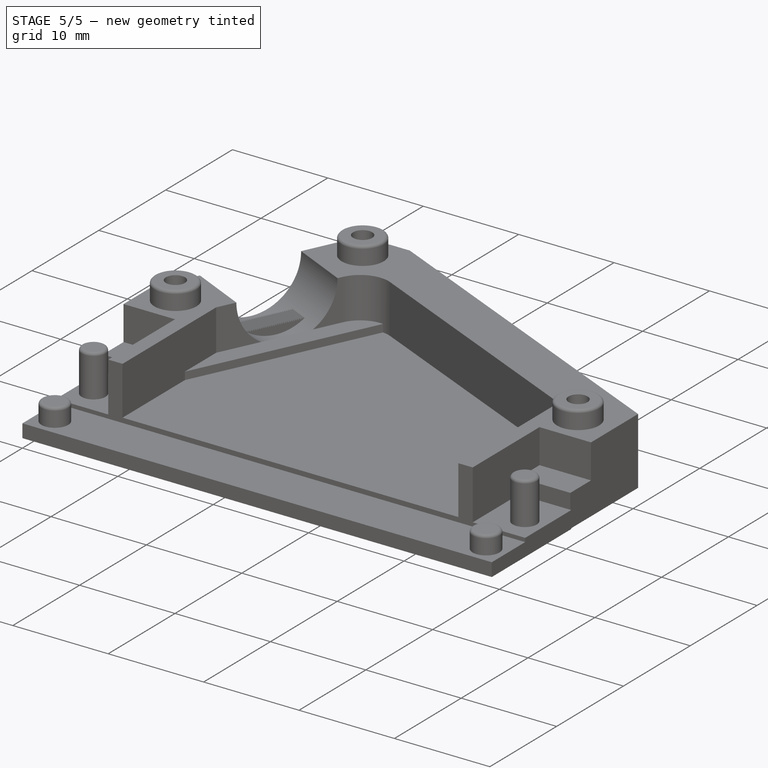
[diagram: stage 5 of 5 — iso view after this stage's code; geometry added in this stage tinted green]
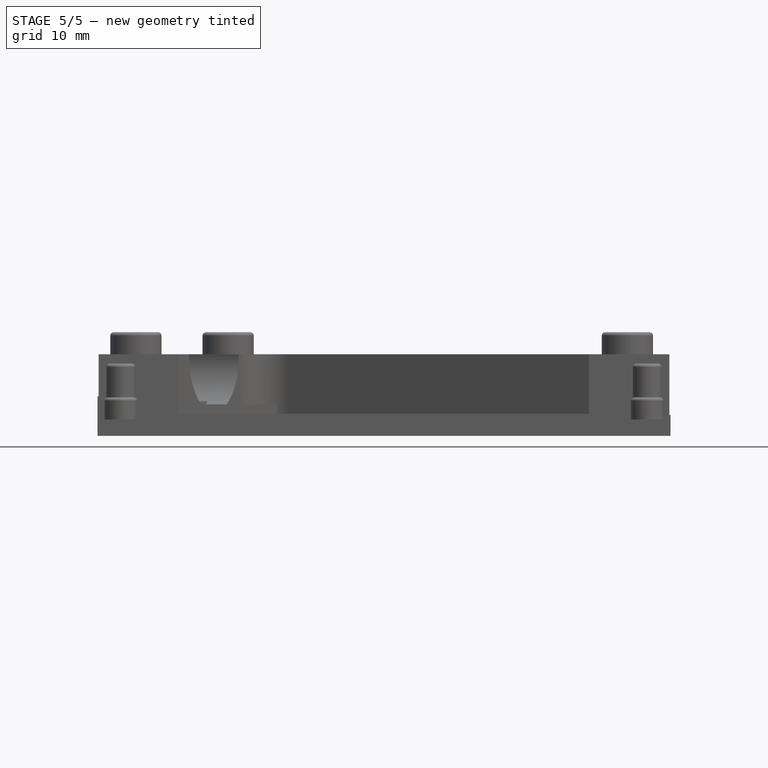
[diagram: stage 5 of 5 — front view after this stage's code; geometry added in this stage tinted green]
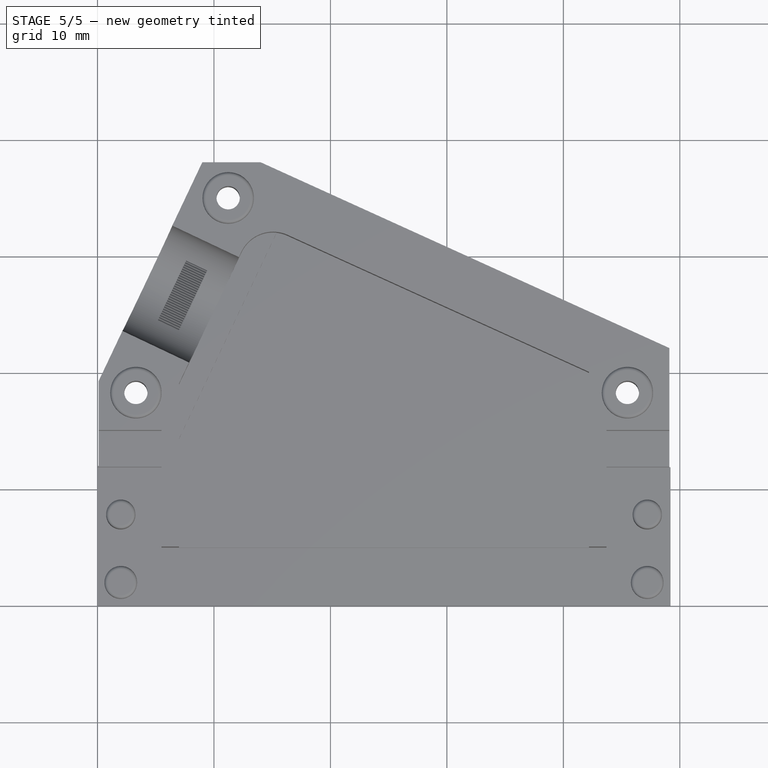
[diagram: stage 5 of 5 — top view after this stage's code; geometry added in this stage tinted green]
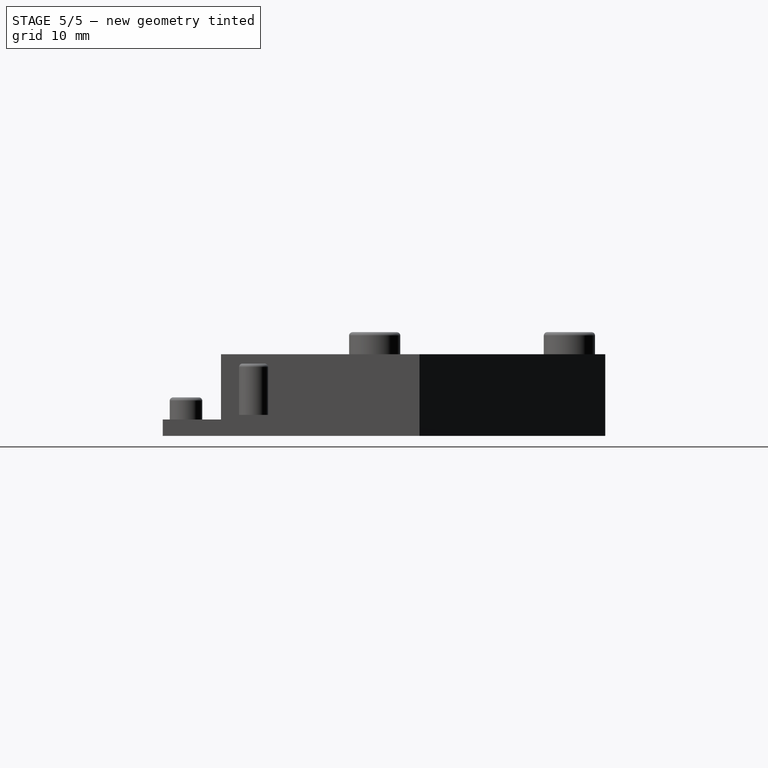
[diagram: stage 5 of 5 — right view after this stage's code; geometry added in this stage tinted green]
FEATURE [Sketcher::SketchObject] Sketch014  label="verjuengung"
  ExternalGeometry = -> [Sketch003]
  FullyConstrained = true
  MapMode = 5
  Support = -> [XY_Plane]
  sketch-geometry (8):
    g0: LineSegment StartX=0 StartY=19.5 StartZ=0 EndX=0.1 EndY=19.5 EndZ=0
    g1: LineSegment StartX=0.1 StartY=19.5 StartZ=0 EndX=0.1 EndY=12 EndZ=0
    g2: LineSegment StartX=0.1 StartY=12 StartZ=0 EndX=0 EndY=12 EndZ=0
    g3: LineSegment StartX=0 StartY=12 StartZ=0 EndX=0 EndY=19.5 EndZ=0
    g4: LineSegment StartX=49.1 StartY=22.4 StartZ=0 EndX=49.2 EndY=22.4 EndZ=0
    g5: LineSegment StartX=49.2 StartY=22.4 StartZ=0 EndX=49.2 EndY=11.9 EndZ=0
    g6: LineSegment StartX=49.2 StartY=11.9 StartZ=0 EndX=49.1 EndY=11.9 EndZ=0
    g7: LineSegment StartX=49.1 StartY=11.9 StartZ=0 EndX=49.1 EndY=22.4 EndZ=0
  constraints (23):
    c: Coincident(g0,g1)
    c: Coincident(g1,g2)
    c: Coincident(g2,g3)
    c: Coincident(g3,g0)
    c: Horizontal(g0)
    c: Horizontal(g2)
    c: Vertical(g1)
    c: Vertical(g3)
    c: PointOnObject(g0,g-2)
    c: DistanceX(g0,g0) = 0.1
    c: DistanceY(g-1,g1) = 12
    c: DistanceY(g-1,g0) = 19.5
    c: Coincident(g4,g5)
    c: Coincident(g5,g6)
    c: Coincident(g6,g7)
    c: Coincident(g7,g4)
    c: Horizontal(g4)
    c: Horizontal(g6)
    c: Vertical(g5)
    c: Vertical(g7)
    c: DistanceX(g4,g4) = 0.1
    c: Coincident(g5,g-3)
    c: DistanceY(g5,g5) = 10.5
FEATURE [PartDesign::Pocket] Pocket007
  BaseFeature = -> Pocket006
  Direction = (0,0,-1)
  Length = 5
  Length2 = 5
  Profile = -> Sketch014
  ReferenceAxis = -> Sketch014 [N_Axis]
  Reversed = true
  Type = 1
FEATURE [Sketcher::SketchObject] Sketch015  label="Mutternaussparungen"
  ExternalGeometry = -> [Pocket007]
  FullyConstrained = true
  MapMode = 5
  Support = -> [XY_Plane]
  sketch-geometry (21):
    g0: LineSegment StartX=47.3187 StartY=17.15 StartZ=0 EndX=47.3187 EndY=19.25 EndZ=0
    g1: LineSegment StartX=47.3187 StartY=19.25 StartZ=0 EndX=45.5 EndY=20.3 EndZ=0
    g2: LineSegment StartX=45.5 StartY=20.3 StartZ=0 EndX=43.6813 EndY=19.25 EndZ=0
    g3: LineSegment StartX=43.6813 StartY=19.25 StartZ=0 EndX=43.6813 EndY=17.15 EndZ=0
    g4: LineSegment StartX=43.6813 StartY=17.15 StartZ=0 EndX=45.5 EndY=16.1 EndZ=0
    g5: LineSegment StartX=45.5 StartY=16.1 StartZ=0 EndX=47.3187 EndY=17.15 EndZ=0
    g6: Circle CenterX=45.5 CenterY=18.2 CenterZ=0 NormalX=0 NormalY=0 NormalZ=1 AngleXU=0 Radius=2.1
    g7: LineSegment StartX=12.2696 StartY=36.7378 StartZ=0 EndX=10.1696 EndY=36.7378 EndZ=0
    g8: LineSegment StartX=10.1696 StartY=36.7378 StartZ=0 EndX=9.1196 EndY=34.9192 EndZ=0
    g9: LineSegment StartX=9.1196 StartY=34.9192 StartZ=0 EndX=10.1696 EndY=33.1005 EndZ=0
    g10: LineSegment StartX=10.1696 StartY=33.1005 StartZ=0 EndX=12.2696 EndY=33.1005 EndZ=0
    g11: LineSegment StartX=12.2696 StartY=33.1005 StartZ=0 EndX=13.3196 EndY=34.9192 EndZ=0
    g12: LineSegment StartX=13.3196 StartY=34.9192 StartZ=0 EndX=12.2696 EndY=36.7378 EndZ=0
    g13: Circle CenterX=11.2196 CenterY=34.9192 CenterZ=0 NormalX=0 NormalY=0 NormalZ=1 AngleXU=0 Radius=2.1
    g14: LineSegment StartX=5.11865 StartY=17.15 StartZ=0 EndX=5.11865 EndY=19.25 EndZ=0
    g15: LineSegment StartX=5.11865 StartY=19.25 StartZ=0 EndX=3.3 EndY=20.3 EndZ=0
    g16: LineSegment StartX=3.3 StartY=20.3 StartZ=0 EndX=1.48135 EndY=19.25 EndZ=0
    g17: LineSegment StartX=1.48135 StartY=19.25 StartZ=0 EndX=1.48135 EndY=17.15 EndZ=0
    g18: LineSegment StartX=1.48135 StartY=17.15 StartZ=0 EndX=3.3 EndY=16.1 EndZ=0
    g19: LineSegment StartX=3.3 StartY=16.1 StartZ=0 EndX=5.11865 EndY=17.15 EndZ=0
    g20: Circle CenterX=3.3 CenterY=18.2 CenterZ=0 NormalX=0 NormalY=0 NormalZ=1 AngleXU=0 Radius=2.1
  constraints (48):
    c: Coincident(g0,g1)
    c: Coincident(g1,g2)
    c: Coincident(g2,g3)
    c: Coincident(g3,g4)
    c: Coincident(g4,g5)
    c: Coincident(g5,g0)
    c: Equal(g0, g1-g5) x5
    c: PointOnObject(g0,g6)
    c: PointOnObject(g1,g6)
    c: PointOnObject(g2,g6)
    c: PointOnObject(g3,g6)
    c: PointOnObject(g4,g6)
    c: PointOnObject(g5,g6)
    c: Parallel(g0,g-2)
    c: Diameter(g6) = 4.2
    c: Coincident(g7,g8)
    c: Coincident(g8,g9)
    c: Coincident(g9,g10)
    c: Coincident(g10,g11)
    c: Coincident(g11,g12)
    c: Coincident(g12,g7)
    c: Equal(g7, g8-g12) x5
    c: PointOnObject(g7,g13)
    c: PointOnObject(g8,g13)
    c: PointOnObject(g9,g13)
    c: PointOnObject(g10,g13)
    c: PointOnObject(g11,g13)
    c: PointOnObject(g12,g13)
    c: Equal(g6,g13)
    c: Parallel(g10,g-1)
    c: Coincident(g14,g15)
    c: Coincident(g15,g16)
    c: Coincident(g16,g17)
    c: Coincident(g17,g18)
    c: Coincident(g18,g19)
    c: Coincident(g19,g14)
    c: Equal(g14, g15-g19) x5
    c: PointOnObject(g14,g20)
    c: PointOnObject(g15,g20)
    c: PointOnObject(g16,g20)
    c: PointOnObject(g17,g20)
    c: PointOnObject(g18,g20)
    c: PointOnObject(g19,g20)
    c: Equal(g13,g20)
    c: Parallel(g14,g-2)
    c: Coincident(g20,g-4)
    c: Coincident(g13,g-5)
    c: Coincident(g6,g-3)
FEATURE [PartDesign::Pocket] Pocket008
  BaseFeature = -> Pocket007
  Direction = (0,0,-1)
  Length = 3
  Length2 = 5
  Profile = -> Sketch015
  ReferenceAxis = -> Sketch015 [N_Axis]
  Reversed = true
  Type = 0
FEATURE [PartDesign::Fillet] Fillet  label="Abrundungen"
  Base = -> Pocket008 [Edge194,Edge191,Edge95,Edge97,Edge177,Edge201,Edge203]
  BaseFeature = -> Pocket008
  Radius = 0.3
  SupportTransform = false
  UseAllEdges = false
FEATURE [PartDesign::Body] Body  label="obereSchale"
  Group = -> [Sketch,Pad,Sketch001,Pocket,Sketch002,Pocket001,Sketch003,Pocket002,Sketch004,Pocket003,Sketch005,Pocket004,Sketch006,Pad001,Sketch007,Pad002,Sketch008,Pocket005,Sketch009,Pad003,Sketch010,Pad004,Sketch011,Pad005,Sketch012,Pocket006,Sketch014,Pocket007,Sketch015,Pocket008,Fillet]
  Origin = -> Origin
  Tip = -> Fillet
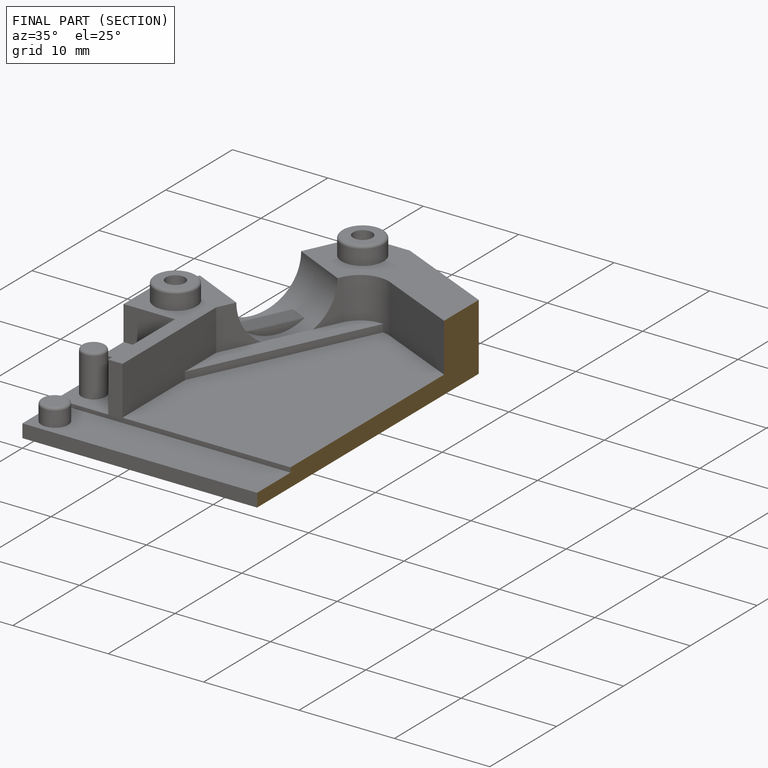
[diagram: finished part — half-section view (interior)]
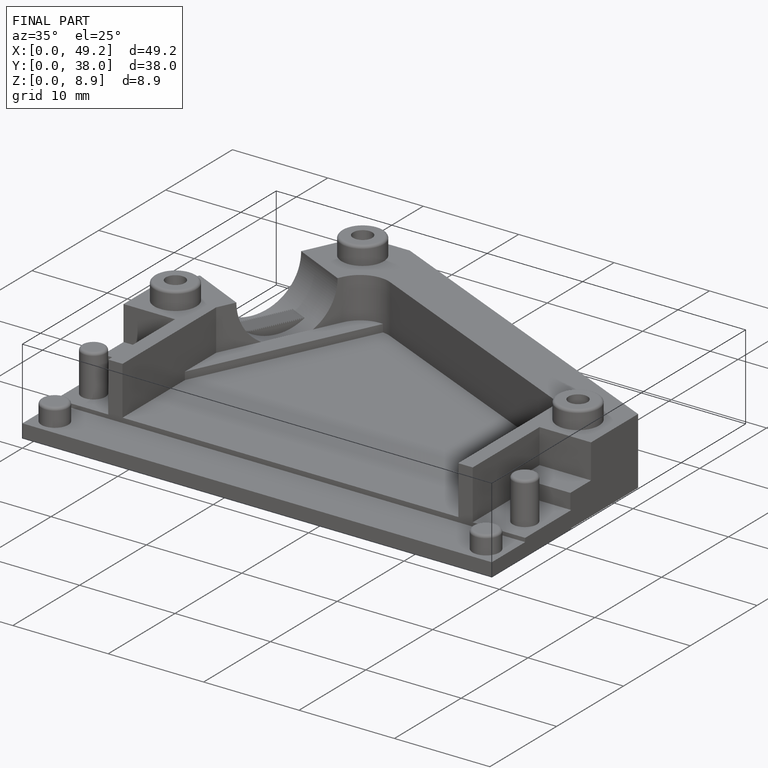
[diagram: finished part — iso view with bounding-box wireframe]
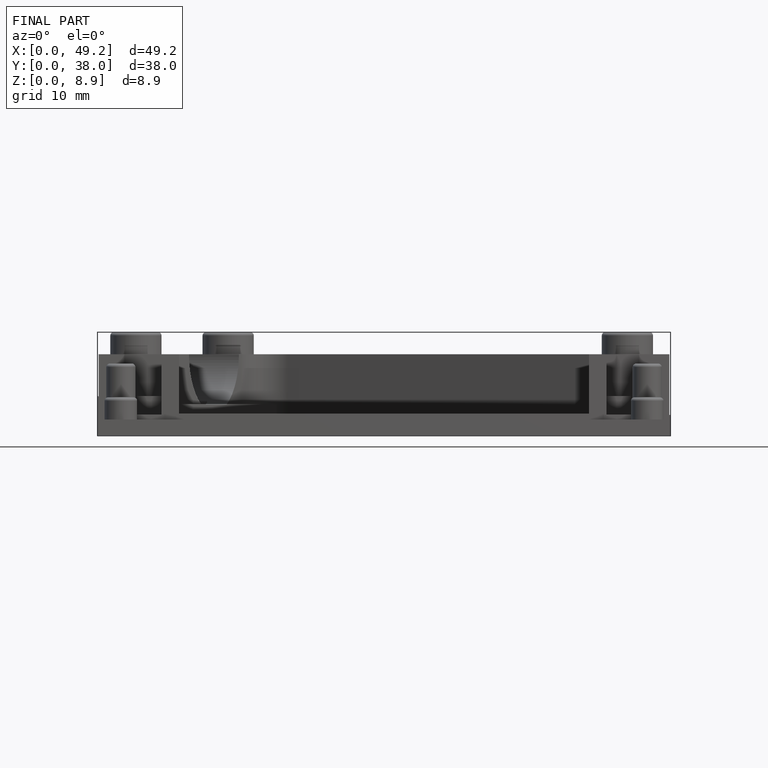
[diagram: finished part — front view with bounding-box wireframe]
